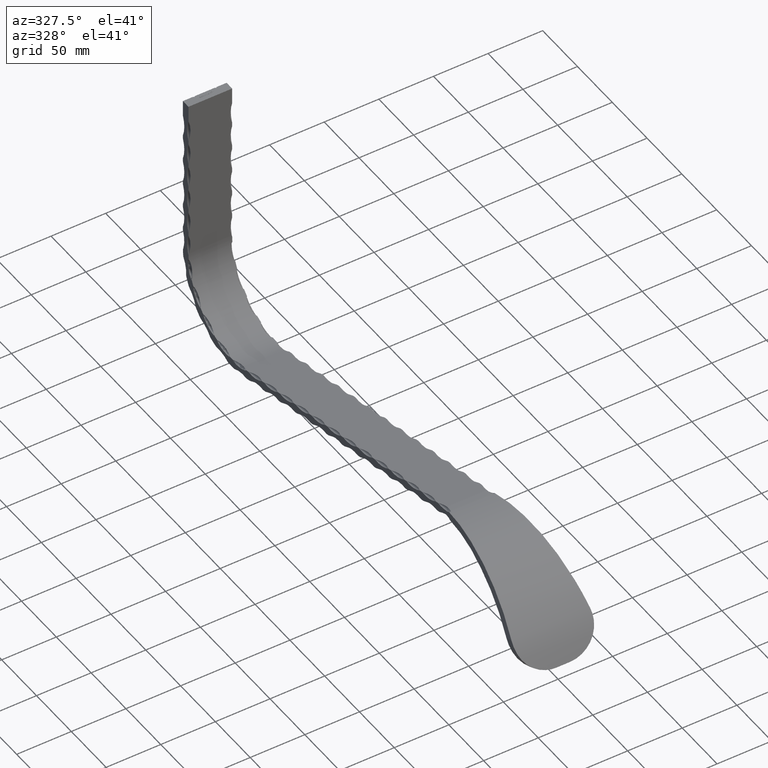
[diagram: clean part render]
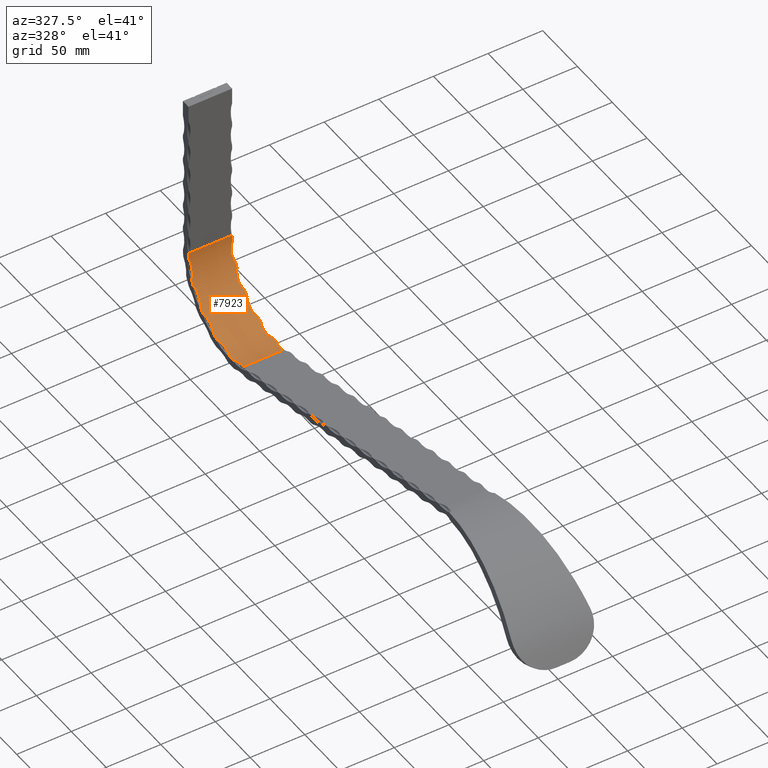
[diagram: same view with one face highlighted and labeled with its STEP entity id]
A machine part, auxiliary view. The second image highlights one B-rep face of the part: STEP entity #7923.
In plain terms, the highlighted cylindrical surface (partial cylindrical patch) has radius 62 mm, axis along (-1, -0, -0).
Its self-contained STEP definition (entity closure, byte-faithful):
#47 = EDGE_CURVE ( 'NONE', #12354, #15151, #887, .T. ) ;
#290 = CARTESIAN_POINT ( 'NONE',  ( -18.68719138520905800, 443.9795327301053500, -0.02651144538278313000 ) ) ;
#295 = CARTESIAN_POINT ( 'NONE',  ( -19.90369905396864100, 482.7277189689108900, 19.04787996444734000 ) ) ;
#326 = ORIENTED_EDGE ( 'NONE', *, *, #3262, .F. ) ;
#345 = CARTESIAN_POINT ( 'NONE',  ( -18.68822196674057400, 455.5403999222446600, 2.278690789800760900 ) ) ;
#348 = CARTESIAN_POINT ( 'NONE',  ( -19.14392234266850700, 492.0311785702201100, 31.80559754568271900 ) ) ;
#371 = CARTESIAN_POINT ( 'NONE',  ( -19.99999999999990400, 435.0342642097218700, -0.2853120057348864600 ) ) ;
#394 = CARTESIAN_POINT ( 'NONE',  ( -19.81828889607189500, 457.9577113853986800, 3.064065334530516400 ) ) ;
#396 = CARTESIAN_POINT ( 'NONE',  ( -19.02059602091225400, 491.8592994374851600, 31.49463779388168300 ) ) ;
#412 = CARTESIAN_POINT ( 'NONE',  ( -19.67491351403288000, 464.0578811206276600, 5.544159079433324400 ) ) ;
#441 = ORIENTED_EDGE ( 'NONE', *, *, #9652, .F. ) ;
#448 = CARTESIAN_POINT ( 'NONE',  ( -19.37595210348068900, 457.3904281489606100, 2.870690396749518800 ) ) ;
#451 = CARTESIAN_POINT ( 'NONE',  ( -18.15888756083449400, 486.3540036451472600, 23.23429518739130400 ) ) ;
#467 = CARTESIAN_POINT ( 'NONE',  ( -19.37310411158465600, 464.4894137903320400, 5.748744352338819800 ) ) ;
#482 = CIRCLE ( 'NONE', #13208, 62.00000000000011400 ) ;
#505 = CARTESIAN_POINT ( 'NONE',  ( -18.68719138520905100, 484.4755952763242700, 20.96849086712985900 ) ) ;
#520 = VERTEX_POINT ( 'NONE', #9267 ) ;
#522 = CARTESIAN_POINT ( 'NONE',  ( -19.61947812566619800, 477.9387518112250200, 14.49801283083825800 ) ) ;
#526 = CARTESIAN_POINT ( 'NONE',  ( 0.0000000000000000000, 437.6900000000000500, 61.65778339167199100 ) ) ;
#543 = CARTESIAN_POINT ( 'NONE',  ( 19.81639440749286900, 499.3304828277949800, 54.99033522892371900 ) ) ;
#558 = CARTESIAN_POINT ( 'NONE',  ( 18.52144386288863800, 454.8383064295905500, 2.071912342253757500 ) ) ;
#594 = CARTESIAN_POINT ( 'NONE',  ( -20.00000000000000000, 499.6662879293584200, 59.94321799563619600 ) ) ;
#626 = CARTESIAN_POINT ( 'NONE',  ( 19.86932737151768400, 435.0089629215372600, -0.2842327431798333800 ) ) ;
#646 = CARTESIAN_POINT ( 'NONE',  ( 19.37310411158475900, 499.2628214751790100, 54.39026102205657800 ) ) ;
#664 = CARTESIAN_POINT ( 'NONE',  ( 19.14392234266837900, 442.5503316042546700, -0.1523603137158767400 ) ) ;
#760 = CARTESIAN_POINT ( 'NONE',  ( -20.00000000000000000, 441.3907631213237400, -0.2316692825912042300 ) ) ;
#769 = CARTESIAN_POINT ( 'NONE',  ( 19.37310411158475900, 457.3849684282734500, 2.868860587997224400 ) ) ;
#773 = CARTESIAN_POINT ( 'NONE',  ( -19.94831422597528500, 499.6684042774157300, 60.02141192794508100 ) ) ;
#791 = CARTESIAN_POINT ( 'NONE',  ( 19.33637270488160500, 499.6900000000001700, 61.65778339167188400 ) ) ;
#815 = CARTESIAN_POINT ( 'NONE',  ( 17.99985822696416100, 471.9445983360947700, 9.974429819550493900 ) ) ;
#887 = LINE ( 'NONE', #4168, #13857 ) ;
#899 = CARTESIAN_POINT ( 'NONE',  ( 19.95631029757695200, 499.6679351534832000, 60.00374359044074200 ) ) ;
#911 = CARTESIAN_POINT ( 'NONE',  ( 20.00000000000000000, 492.5803894379131400, 32.82992971932495200 ) ) ;
#949 = CIRCLE ( 'NONE', #10217, 62.00000000000011400 ) ;
#974 = CARTESIAN_POINT ( 'NONE',  ( -19.95624225361313000, 499.6679391014228000, 60.00389163318405400 ) ) ;
#1014 = ORIENTED_EDGE ( 'NONE', *, *, #15213, .F. ) ;
#1020 = CARTESIAN_POINT ( 'NONE',  ( -19.99999999999990400, 435.0342642097218700, -0.2853120057348864600 ) ) ;
#1026 = EDGE_CURVE ( 'NONE', #6177, #8564, #6988, .T. ) ;
#1027 = CARTESIAN_POINT ( 'NONE',  ( -19.33637270488094400, 499.6900000000001700, 61.65778339167187700 ) ) ;
#1077 = CARTESIAN_POINT ( 'NONE',  ( -19.02059602091224000, 499.1566337753187700, 53.53489682147517200 ) ) ;
#1110 = B_SPLINE_CURVE_WITH_KNOTS ( 'NONE', 3,
 ( #15112, #5724, #14027, #4348, #11577, #1974, #7926, #4497, #10237, #12776, #7974, #3165, #11424, #12619, #815, #9107, #2034, #3211, #11475, #4401, #13874, #1142, #3564, #2443, #9352, #15370, #10699, #14077, #10542, #3620 ),
 .UNSPECIFIED., .F., .F.,
 ( 4, 2, 2, 2, 2, 2, 2, 2, 2, 2, 2, 2, 2, 2, 4 ),
 ( 1.968361847445625900E-007, 0.0002845478791630979100, 0.0005688989221414512800, 0.001137601008098260600, 0.002275005180011994100, 0.004549813523839459400, 0.006824621867666924800, 0.009099430211494390100, 0.01137423855532185500, 0.01364904689914932100, 0.01592385524297678900, 0.01706125941489045100, 0.01762996150084728000, 0.01791431254382569400, 0.01819866358680410900 ),
 .UNSPECIFIED. ) ;
#1142 = CARTESIAN_POINT ( 'NONE',  ( 19.02059602091212300, 465.2644056504058200, 6.125986131648991400 ) ) ;
#1161 = CARTESIAN_POINT ( 'NONE',  ( 19.61947812566615600, 495.3359552893570600, 38.83345819924810600 ) ) ;
#1183 = VERTEX_POINT ( 'NONE', #5930 ) ;
#1192 = DIRECTION ( 'NONE',  ( -1.000000000000000000, -0.0000000000000000000, -0.0000000000000000000 ) ) ;
#1203 = DIRECTION ( 'NONE',  ( 0.0000000000000000000, 0.0000000000000000000, 1.000000000000000000 ) ) ;
#1246 = CARTESIAN_POINT ( 'NONE',  ( -18.00014273571079900, 498.0337344575001500, 47.40365222380359000 ) ) ;
#1328 = CARTESIAN_POINT ( 'NONE',  ( 18.00014273571078100, 487.6941188592720100, 24.99534156442994600 ) ) ;
#1372 = CARTESIAN_POINT ( 'NONE',  ( 17.99985822696416100, 488.5541007365347400, 26.19809078313765100 ) ) ;
#1398 = VERTEX_POINT ( 'NONE', #371 ) ;
#1419 = EDGE_CURVE ( 'NONE', #1183, #9779, #6056, .T. ) ;
#1422 = CARTESIAN_POINT ( 'NONE',  ( 19.37310411158475900, 492.2726776492482400, 32.25097250634529900 ) ) ;
#1424 = AXIS2_PLACEMENT_3D ( 'NONE', #8124, #1192, #13083 ) ;
#1474 = CARTESIAN_POINT ( 'NONE',  ( 18.68719138520919300, 491.3286488397477000, 30.55463560637515000 ) ) ;
#1502 = CARTESIAN_POINT ( 'NONE',  ( -18.52144386288851800, 444.7026256442925400, 0.05126162900434505500 ) ) ;
#1530 = EDGE_CURVE ( 'NONE', #520, #4849, #6327, .T. ) ;
#1558 = CARTESIAN_POINT ( 'NONE',  ( -19.14392234266850300, 456.9041413888973600, 2.709217176101657900 ) ) ;
#1614 = CARTESIAN_POINT ( 'NONE',  ( -18.15919154060683000, 489.7934542530018100, 28.04565957195817600 ) ) ;
#1615 = AXIS2_PLACEMENT_3D ( 'NONE', #6296, #6241, #13447 ) ;
#1681 = CARTESIAN_POINT ( 'NONE',  ( -19.90369905396865500, 463.8965862696247200, 5.468684483674342900 ) ) ;
#1714 = CARTESIAN_POINT ( 'NONE',  ( -18.00014273571079600, 488.5598227586488600, 26.20629997938368700 ) ) ;
#1727 = VERTEX_POINT ( 'NONE', #2524 ) ;
#1731 = CARTESIAN_POINT ( 'NONE',  ( -19.81828889607191600, 478.0897288969942500, 14.62730576693406100 ) ) ;
#1740 = DIRECTION ( 'NONE',  ( 0.0000000000000000000, 0.0000000000000000000, 1.000000000000000000 ) ) ;
#1770 = CARTESIAN_POINT ( 'NONE',  ( 19.90487990038382900, 441.3907631213222100, -0.2316692825913043700 ) ) ;
#1785 = CARTESIAN_POINT ( 'NONE',  ( -18.52114597830945900, 475.5532262967483300, 12.55665935534264200 ) ) ;
#1841 = CARTESIAN_POINT ( 'NONE',  ( 18.23920007506646000, 423.1718806842908400, 1.381550832438140000 ) ) ;
#1856 = CARTESIAN_POINT ( 'NONE',  ( 19.01799810594225400, 499.1556115863784300, 53.52721113693982600 ) ) ;
#1874 = CARTESIAN_POINT ( 'NONE',  ( 18.03160873164034700, 448.3550333466049000, 0.5774929823898673500 ) ) ;
#1884 = B_SPLINE_CURVE_WITH_KNOTS ( 'NONE', 3,
 ( #9927, #295, #8603, #9780, #2712, #2862, #14650, #10963, #4046, #505, #3889, #7506, #451, #8810, #3990, #1714, #13351, #1614, #12299, #11121, #6252, #396, #348, #5220, #9876, #14556, #2807, #13513, #7456, #12203 ),
 .UNSPECIFIED., .F., .F.,
 ( 4, 2, 2, 2, 2, 2, 2, 2, 2, 2, 2, 2, 2, 2, 4 ),
 ( 1.968361847429767600E-007, 0.0002845478791631053900, 0.0005688989221414678700, 0.001137601008098292900, 0.002275005180012047500, 0.004549813523839672800, 0.006824621867667299500, 0.009099430211494924400, 0.01137423855532255200, 0.01364904689915017800, 0.01592385524297780500, 0.01706125941489157800, 0.01762996150084846600, 0.01791431254382686700, 0.01819866358680527100 ),
 .UNSPECIFIED. ) ;
#1924 = CARTESIAN_POINT ( 'NONE',  ( 19.01799810594226500, 456.5586603197866700, 2.597633793034315200 ) ) ;
#1974 = CARTESIAN_POINT ( 'NONE',  ( 19.45692185769785700, 477.7569870827563200, 14.34329297583547300 ) ) ;
#1975 = CARTESIAN_POINT ( 'NONE',  ( -18.01851609357287000, 425.1894334118264300, 0.9221135139120163500 ) ) ;
#1981 = CARTESIAN_POINT ( 'NONE',  ( 18.25502145826447600, 446.1675517535293800, 0.2356749656663107400 ) ) ;
#1984 = CARTESIAN_POINT ( 'NONE',  ( -20.00000000000000000, 437.6900000000000500, 61.65778339167199100 ) ) ;
#2001 = CARTESIAN_POINT ( 'NONE',  ( 19.32154447793690000, 434.2863259259376000, -0.2491399680398377900 ) ) ;
#2034 = CARTESIAN_POINT ( 'NONE',  ( 18.03160873164034300, 470.0749506047996000, 8.782838596512876400 ) ) ;
#2043 = CARTESIAN_POINT ( 'NONE',  ( -19.98415826360468000, 499.6665738833070200, 59.95356653165409000 ) ) ;
#2055 = CARTESIAN_POINT ( 'NONE',  ( -19.99999999999994300, 478.1280451573723000, 14.66028873663384100 ) ) ;
#2280 = CARTESIAN_POINT ( 'NONE',  ( -19.14392234266850000, 499.2020796826811300, 53.88727882018372400 ) ) ;
#2360 = CARTESIAN_POINT ( 'NONE',  ( 19.81828889607191300, 495.2624685475007000, 38.64876807357012500 ) ) ;
#2443 = CARTESIAN_POINT ( 'NONE',  ( 19.37595210348061800, 464.4842210093903000, 5.746256024357371000 ) ) ;
#2481 = CARTESIAN_POINT ( 'NONE',  ( 18.68822196674043900, 484.4725637820400300, 20.96496901879989500 ) ) ;
#2491 = CARTESIAN_POINT ( 'NONE',  ( -19.99999999999994300, 499.3359971906606900, 55.04181555853698200 ) ) ;
#2524 = CARTESIAN_POINT ( 'NONE',  ( 20.00000000000000000, 499.3359971906606900, 55.04181555853699600 ) ) ;
#2534 = CARTESIAN_POINT ( 'NONE',  ( 19.67696757368710400, 482.8483707015167300, 19.17572275255028200 ) ) ;
#2580 = DIRECTION ( 'NONE',  ( 0.0000000000000000000, 0.0000000000000000000, 1.000000000000000000 ) ) ;
#2583 = CARTESIAN_POINT ( 'NONE',  ( 18.52114597830932800, 484.9504609009044300, 21.52060458369092200 ) ) ;
#2659 = CARTESIAN_POINT ( 'NONE',  ( -19.67696757368711900, 457.8393214602559700, 3.023247789751642800 ) ) ;
#2686 = CARTESIAN_POINT ( 'NONE',  ( -20.00000000000000000, 437.6900000000000500, 61.65778339167199100 ) ) ;
#2703 = EDGE_CURVE ( 'NONE', #520, #14333, #4746, .T. ) ;
#2711 = CARTESIAN_POINT ( 'NONE',  ( -19.81639440749286900, 441.4424462593762000, -0.2285893839004035600 ) ) ;
#2712 = CARTESIAN_POINT ( 'NONE',  ( -19.61630457784930200, 482.9015604884309600, 19.23230858583196900 ) ) ;
#2761 = CARTESIAN_POINT ( 'NONE',  ( -19.01799810594213700, 442.9121903869805700, -0.1229283267849321900 ) ) ;
#2807 = CARTESIAN_POINT ( 'NONE',  ( -19.67696757368713600, 492.4984625956755100, 32.67440283556643300 ) ) ;
#2818 = VERTEX_POINT ( 'NONE', #11871 ) ;
#2819 = VERTEX_POINT ( 'NONE', #14114 ) ;
#2862 = CARTESIAN_POINT ( 'NONE',  ( -19.45692185769778200, 483.0618646756458900, 19.40357232277483800 ) ) ;
#3000 = CARTESIAN_POINT ( 'NONE',  ( 19.67491351403292300, 499.3167721458674500, 54.86477646336923900 ) ) ;
#3019 = EDGE_CURVE ( 'NONE', #14131, #11996, #4542, .T. ) ;
#3060 = ORIENTED_EDGE ( 'NONE', *, *, #11952, .F. ) ;
#3123 = CARTESIAN_POINT ( 'NONE',  ( 17.99985822696415700, 450.5319123372481700, 0.9978144570399123400 ) ) ;
#3127 = CARTESIAN_POINT ( 'NONE',  ( -19.33637270488094400, 499.6900000000001700, 61.65778339167187700 ) ) ;
#3146 = CARTESIAN_POINT ( 'NONE',  ( 19.97383523327071200, 499.6670114242884900, 59.96955355043007100 ) ) ;
#3165 = CARTESIAN_POINT ( 'NONE',  ( 18.25601629155377700, 474.3791042618744900, 11.67328508887481900 ) ) ;
#3171 = ORIENTED_EDGE ( 'NONE', *, *, #6577, .F. ) ;
#3172 = CARTESIAN_POINT ( 'NONE',  ( 19.02059602091212300, 442.9044650409271100, -0.1235868443334298800 ) ) ;
#3211 = CARTESIAN_POINT ( 'NONE',  ( 18.15919154060674500, 468.8069906073234300, 8.026843549914803000 ) ) ;
#3233 = VERTEX_POINT ( 'NONE', #15388 ) ;
#3262 = EDGE_CURVE ( 'NONE', #4849, #1727, #9712, .T. ) ;
#3291 = VERTEX_POINT ( 'NONE', #13396 ) ;
#3306 = EDGE_CURVE ( 'NONE', #7314, #8362, #13077, .T. ) ;
#3408 = CARTESIAN_POINT ( 'NONE',  ( -19.01799810594212700, 495.7943741012262500, 40.02426025784744500 ) ) ;
#3462 = CARTESIAN_POINT ( 'NONE',  ( -19.37595210348068500, 499.2634957405789500, 54.39597959847228000 ) ) ;
#3463 = CARTESIAN_POINT ( 'NONE',  ( -19.87033670662543000, 435.0093519409404100, -0.2842492546155290800 ) ) ;
#3485 = CARTESIAN_POINT ( 'NONE',  ( 19.37595210348060300, 495.4823869729413000, 39.20629836248458100 ) ) ;
#3519 = CARTESIAN_POINT ( 'NONE',  ( -18.15919154060682700, 498.5042898818443900, 49.56783058227500800 ) ) ;
#3537 = EDGE_CURVE ( 'NONE', #15151, #1398, #12106, .T. ) ;
#3564 = CARTESIAN_POINT ( 'NONE',  ( 19.14392234266840700, 464.9456845001389000, 5.968966286144319800 ) ) ;
#3588 = CARTESIAN_POINT ( 'NONE',  ( 19.46073674653607500, 495.4211022486071600, 39.04929472017756400 ) ) ;
#3606 = CARTESIAN_POINT ( 'NONE',  ( -20.00000000000000000, 437.6900000000000500, 61.65778339167199100 ) ) ;
#3620 = CARTESIAN_POINT ( 'NONE',  ( 19.99999999999994700, 463.8965862696246100, 5.468684483674348200 ) ) ;
#3636 = AXIS2_PLACEMENT_3D ( 'NONE', #2686, #3909, #3960 ) ;
#3685 = ORIENTED_EDGE ( 'NONE', *, *, #11926, .F. ) ;
#3713 = CARTESIAN_POINT ( 'NONE',  ( 19.90487990038383300, 482.7277189689100400, 19.04787996444617100 ) ) ;
#3752 = CARTESIAN_POINT ( 'NONE',  ( 19.81639440749286500, 492.5563252730344200, 32.78408706992951900 ) ) ;
#3829 = DIRECTION ( 'NONE',  ( -1.000000000000000000, -0.0000000000000000000, -0.0000000000000000000 ) ) ;
#3854 = CARTESIAN_POINT ( 'NONE',  ( 18.52144386288865300, 490.9603565499801900, 29.92752094146504400 ) ) ;
#3889 = CARTESIAN_POINT ( 'NONE',  ( -18.52144386288852100, 484.9498081007539600, 21.51988384023869500 ) ) ;
#3909 = DIRECTION ( 'NONE',  ( -1.000000000000000000, -0.0000000000000000000, -0.0000000000000000000 ) ) ;
#3957 = B_SPLINE_CURVE_WITH_KNOTS ( 'NONE', 3,
 ( #12630, #4506, #2043, #13987, #12786, #974, #773, #12736, #7984, #5642, #10194, #15122, #12575, #5485, #15019, #3127 ),
 .UNSPECIFIED., .F., .F.,
 ( 4, 2, 2, 2, 2, 2, 2, 4 ),
 ( 1.971371264760840900E-007, 2.927271934299039000E-005, 5.834830155950470100E-005, 0.0001164994659925333100, 0.0002328017948586097700, 0.0004654064525907626300, 0.0009306157680550910800, 0.001861034398983728100 ),
 .UNSPECIFIED. ) ;
#3960 = DIRECTION ( 'NONE',  ( 0.0000000000000000000, 0.0000000000000000000, 1.000000000000000000 ) ) ;
#3987 = CARTESIAN_POINT ( 'NONE',  ( -18.25502145826458300, 453.4146559147805000, 1.680458646469092300 ) ) ;
#3990 = CARTESIAN_POINT ( 'NONE',  ( -17.99985822696414000, 487.7000349990144600, 25.00341198762995600 ) ) ;
#4046 = CARTESIAN_POINT ( 'NONE',  ( -19.01799810594212700, 483.7630443295157100, 20.16799911786026600 ) ) ;
#4063 = CARTESIAN_POINT ( 'NONE',  ( -19.81639440749285100, 463.9435129966418600, 5.490559465419595500 ) ) ;
#4067 = DIRECTION ( 'NONE',  ( -1.000000000000000000, 0.0000000000000000000, 0.0000000000000000000 ) ) ;
#4113 = CARTESIAN_POINT ( 'NONE',  ( -17.99985822696413300, 470.7109631029671800, 9.177667734591171500 ) ) ;
#4165 = CARTESIAN_POINT ( 'NONE',  ( 20.00000000000000000, 435.0342642097218700, -0.2853120057348806900 ) ) ;
#4168 = CARTESIAN_POINT ( 'NONE',  ( 20.00000000000000000, 423.1718806842908400, 1.381550832438196900 ) ) ;
#4182 = CARTESIAN_POINT ( 'NONE',  ( 19.45692185769785400, 499.2822069059872100, 54.55676194049390700 ) ) ;
#4274 = CARTESIAN_POINT ( 'NONE',  ( 18.44255843233208500, 431.3039362760505900, -0.01458517876724504400 ) ) ;
#4278 = CARTESIAN_POINT ( 'NONE',  ( 19.94838846342634800, 499.6683999553207500, 60.02124823987443800 ) ) ;
#4301 = CARTESIAN_POINT ( 'NONE',  ( 18.15919154060673800, 446.8978864947837300, 0.3409044832864457900 ) ) ;
#4348 = CARTESIAN_POINT ( 'NONE',  ( 19.67491351403292300, 477.9929105956314300, 14.54430988602642400 ) ) ;
#4354 = CARTESIAN_POINT ( 'NONE',  ( 19.99999999999994300, 441.3907631213237400, -0.2316692825912051700 ) ) ;
#4401 = CARTESIAN_POINT ( 'NONE',  ( 18.52114597830933500, 466.8730533743000700, 6.950437605365310700 ) ) ;
#4478 = CARTESIAN_POINT ( 'NONE',  ( 20.00000000000002100, 499.6662879293584800, 59.94321799563618900 ) ) ;
#4497 = CARTESIAN_POINT ( 'NONE',  ( 19.14159486558975200, 477.2357542768105500, 13.90581775771580600 ) ) ;
#4506 = CARTESIAN_POINT ( 'NONE',  ( -19.99018256397586100, 499.6662879293585300, 59.94321799563620300 ) ) ;
#4542 = B_SPLINE_CURVE_WITH_KNOTS ( 'NONE', 3,
 ( #14621, #1681, #4063, #412, #14667, #8721, #467, #9891, #9998, #5187, #8768, #13574, #6524, #9947, #4113, #11137, #12317, #13525, #6426, #1785, #8922, #11190, #12425, #14772, #14724, #522, #8828, #1731, #12372, #2055 ),
 .UNSPECIFIED., .F., .F.,
 ( 4, 2, 2, 2, 2, 2, 2, 2, 2, 2, 2, 2, 2, 2, 4 ),
 ( 1.968361847449567800E-007, 0.0002845478791631387900, 0.0005688989221415325900, 0.001137601008098320200, 0.002275005180012038800, 0.004549813523839615600, 0.006824621867667191900, 0.009099430211494768200, 0.01137423855532234500, 0.01364904689914991900, 0.01592385524297749300, 0.01706125941489134600, 0.01762996150084821300, 0.01791431254382664900, 0.01819866358680508400 ),
 .UNSPECIFIED. ) ;
#4550 = CARTESIAN_POINT ( 'NONE',  ( -19.58463138201677400, 434.7453699292201500, -0.2723279678675683000 ) ) ;
#4562 = VECTOR ( 'NONE', #5617, 1000.000000000000000 ) ;
#4602 = CARTESIAN_POINT ( 'NONE',  ( -18.68822196674056400, 499.0096678743296900, 52.47019679955946000 ) ) ;
#4604 = CARTESIAN_POINT ( 'NONE',  ( -18.94597589702860700, 433.3209177671284900, -0.1900082743451723400 ) ) ;
#4654 = CARTESIAN_POINT ( 'NONE',  ( -19.61947812566619100, 499.3089409343368200, 54.79395793914402900 ) ) ;
#4655 = CARTESIAN_POINT ( 'NONE',  ( -19.71320070707240300, 434.8917190759002600, -0.2790554740992136100 ) ) ;
#4726 = CARTESIAN_POINT ( 'NONE',  ( -20.00000000000000000, 495.2436576922355000, 38.60184085520203500 ) ) ;
#4746 = LINE ( 'NONE', #13963, #4562 ) ;
#4842 = CARTESIAN_POINT ( 'NONE',  ( 19.46073674653607500, 483.0573133498917300, 19.39869198803477300 ) ) ;
#4849 = VERTEX_POINT ( 'NONE', #10829 ) ;
#4937 = CARTESIAN_POINT ( 'NONE',  ( 18.03160873164034700, 487.2538464779543700, 24.40231486588081100 ) ) ;
#4962 = CARTESIAN_POINT ( 'NONE',  ( -20.00000000000000000, 441.3907631213237400, -0.2316692825912042300 ) ) ;
#5014 = CARTESIAN_POINT ( 'NONE',  ( -19.61630457784930600, 441.6437286450150700, -0.2160733177784472900 ) ) ;
#5118 = CARTESIAN_POINT ( 'NONE',  ( 20.00000000000000000, 437.6900000000000500, 61.65778339167199100 ) ) ;
#5174 = EDGE_CURVE ( 'NONE', #7314, #1398, #6923, .T. ) ;
#5187 = CARTESIAN_POINT ( 'NONE',  ( -18.68719138520906100, 466.2283922769018400, 6.611706167609522600 ) ) ;
#5204 = CARTESIAN_POINT ( 'NONE',  ( -19.99999999999994300, 478.1280451573723000, 14.66028873663384100 ) ) ;
#5220 = CARTESIAN_POINT ( 'NONE',  ( -19.37595210348069200, 492.2754081507771400, 32.25604213270756300 ) ) ;
#5299 = ORIENTED_EDGE ( 'NONE', *, *, #8357, .F. ) ;
#5331 = VERTEX_POINT ( 'NONE', #12094 ) ;
#5341 = CARTESIAN_POINT ( 'NONE',  ( 19.71114667279109500, 434.8897043075757600, -0.2789649983172497500 ) ) ;
#5368 = CIRCLE ( 'NONE', #1615, 62.00000000000011400 ) ;
#5444 = CARTESIAN_POINT ( 'NONE',  ( 18.94299688040700500, 433.3117356371239500, -0.1893736344050040700 ) ) ;
#5480 = CARTESIAN_POINT ( 'NONE',  ( 19.37595210348059300, 442.0393000783718100, -0.1897126035119271700 ) ) ;
#5485 = CARTESIAN_POINT ( 'NONE',  ( -19.53602496574197300, 499.6879427739728500, 61.07647026343795500 ) ) ;
#5500 = ORIENTED_EDGE ( 'NONE', *, *, #47, .F. ) ;
#5503 = CARTESIAN_POINT ( 'NONE',  ( 18.79878731680096500, 432.8137067064858500, -0.1522116063787079800 ) ) ;
#5533 = CARTESIAN_POINT ( 'NONE',  ( -17.98731056242003800, 427.2374155926059400, 0.5363531095532075900 ) ) ;
#5580 = ORIENTED_EDGE ( 'NONE', *, *, #11903, .F. ) ;
#5617 = DIRECTION ( 'NONE',  ( -1.000000000000000000, 0.0000000000000000000, 0.0000000000000000000 ) ) ;
#5632 = CARTESIAN_POINT ( 'NONE',  ( -18.03373092338916500, 428.2582220481886600, 0.3707857511742435100 ) ) ;
#5642 = CARTESIAN_POINT ( 'NONE',  ( -19.86597698567867800, 499.6732722597969300, 60.21591074508960200 ) ) ;
#5680 = CARTESIAN_POINT ( 'NONE',  ( -18.09576145840902200, 424.1754882558215100, 1.139822146835328000 ) ) ;
#5724 = CARTESIAN_POINT ( 'NONE',  ( 19.90369905396865500, 478.1280451573724100, 14.66028873663384700 ) ) ;
#5772 = CARTESIAN_POINT ( 'NONE',  ( -18.15888756083449000, 497.0757813290105700, 43.82863107019745300 ) ) ;
#5793 = CARTESIAN_POINT ( 'NONE',  ( 19.02059602091212300, 495.7916739294523700, 40.01699226710732700 ) ) ;
#5821 = CARTESIAN_POINT ( 'NONE',  ( -19.67696757368712600, 499.3170229200666800, 54.86705687890678000 ) ) ;
#5880 = CARTESIAN_POINT ( 'NONE',  ( -18.68719138520905800, 496.1625168890545300, 41.03073270169105800 ) ) ;
#5907 = CARTESIAN_POINT ( 'NONE',  ( 18.68822196674043600, 496.1609934021578900, 41.02634267197236500 ) ) ;
#5930 = CARTESIAN_POINT ( 'NONE',  ( 19.99999999999994700, 463.8965862696246100, 5.468684483674348200 ) ) ;
#5932 = CARTESIAN_POINT ( 'NONE',  ( -19.37310411158467400, 495.4844722797958000, 39.21166569379302300 ) ) ;
#5937 = FACE_OUTER_BOUND ( 'NONE', #15147, .T. ) ;
#5952 = CARTESIAN_POINT ( 'NONE',  ( 18.52114597830932000, 496.4010013299857700, 41.71881125015517000 ) ) ;
#5975 = CARTESIAN_POINT ( 'NONE',  ( 18.25502145826448000, 485.8921547648604900, 22.65654542088172700 ) ) ;
#6056 = CIRCLE ( 'NONE', #12325, 62.00000000000011400 ) ;
#6125 = CARTESIAN_POINT ( 'NONE',  ( 19.02059602091213400, 483.7578600247717300, 20.16223391176431800 ) ) ;
#6170 = CARTESIAN_POINT ( 'NONE',  ( 19.90369905396863700, 492.5803894379130800, 32.82992971932497300 ) ) ;
#6177 = VERTEX_POINT ( 'NONE', #594 ) ;
#6199 = CARTESIAN_POINT ( 'NONE',  ( -18.03103481941468500, 448.3633009777843200, 0.5788971641299545100 ) ) ;
#6241 = DIRECTION ( 'NONE',  ( -1.000000000000000000, -0.0000000000000000000, -0.0000000000000000000 ) ) ;
#6249 = CARTESIAN_POINT ( 'NONE',  ( -19.67491351403288700, 441.5685119951535300, -0.2208165678460412300 ) ) ;
#6252 = CARTESIAN_POINT ( 'NONE',  ( -18.68822196674057400, 491.3310003459099000, 30.55864357244579600 ) ) ;
#6296 = CARTESIAN_POINT ( 'NONE',  ( 20.00000000000000000, 437.6900000000000500, 61.65778339167199100 ) ) ;
#6301 = CARTESIAN_POINT ( 'NONE',  ( -19.45692185769778200, 441.8778141016027800, -0.2008188415699516400 ) ) ;
#6327 = B_SPLINE_CURVE_WITH_KNOTS ( 'NONE', 3,
 ( #791, #6749, #10328, #14880, #13748, #10374, #11557, #12592, #9033, #4278, #899, #7957, #3146, #13797, #6593, #4478 ),
 .UNSPECIFIED., .F., .F.,
 ( 4, 2, 2, 2, 2, 2, 2, 4 ),
 ( 2.107910642480517100E-007, 0.0009220416514771382600, 0.001382957081683592400, 0.001613414796786827400, 0.001728643654338433000, 0.001786258083114236000, 0.001815065297502130400, 0.001843872511890024800 ),
 .UNSPECIFIED. ) ;
#6351 = CARTESIAN_POINT ( 'NONE',  ( -19.46073674653613800, 457.5501478260069300, 2.924501045310960600 ) ) ;
#6360 = VERTEX_POINT ( 'NONE', #911 ) ;
#6426 = CARTESIAN_POINT ( 'NONE',  ( -18.25502145826459400, 474.3741302225805600, 11.66959601662779300 ) ) ;
#6524 = CARTESIAN_POINT ( 'NONE',  ( -18.15888756083450100, 468.8085539436543200, 8.027705105179835600 ) ) ;
#6566 = CARTESIAN_POINT ( 'NONE',  ( 19.81639440749287900, 457.9565606597800000, 3.063666730781226600 ) ) ;
#6577 = EDGE_CURVE ( 'NONE', #6360, #2818, #11264, .T. ) ;
#6593 = CARTESIAN_POINT ( 'NONE',  ( 19.99030595753429300, 499.6662879293391500, 59.94321799492850300 ) ) ;
#6595 = ORIENTED_EDGE ( 'NONE', *, *, #3306, .F. ) ;
#6604 = CARTESIAN_POINT ( 'NONE',  ( 18.52144386288864200, 498.8971607338692700, 51.74698539053545700 ) ) ;
#6623 = CARTESIAN_POINT ( 'NONE',  ( 19.46073674653606700, 441.8711557827275600, -0.2012649615703310500 ) ) ;
#6625 = CARTESIAN_POINT ( 'NONE',  ( -20.00000000000000000, 463.8965862696246100, 5.468684483674351800 ) ) ;
#6672 = CARTESIAN_POINT ( 'NONE',  ( 19.67696757368710400, 441.5662222889852700, -0.2209594957523666200 ) ) ;
#6674 = EDGE_CURVE ( 'NONE', #3291, #12354, #12690, .T. ) ;
#6691 = CARTESIAN_POINT ( 'NONE',  ( 18.09556197706712800, 424.1768839816683700, 1.139485972633241800 ) ) ;
#6705 = B_SPLINE_CURVE_WITH_KNOTS ( 'NONE', 3,
 ( #13721, #13672, #6566, #14856, #7773, #11378, #769, #11328, #1924, #8863, #558, #12571, #11427, #10190, #3123, #11227, #1874, #4301, #1981, #14911, #13612, #3172, #664, #5480, #6623, #13828, #6672, #13774, #1770, #4354 ),
 .UNSPECIFIED., .F., .F.,
 ( 4, 2, 2, 2, 2, 2, 2, 2, 2, 2, 2, 2, 2, 2, 4 ),
 ( 1.968361847476026700E-007, 0.0002845478791631853000, 0.0005688989221416230200, 0.001137601008098498200, 0.002275005180012249100, 0.004549813523839750000, 0.006824621867667250900, 0.009099430211494752600, 0.01137423855532225500, 0.01364904689914975400, 0.01592385524297725700, 0.01706125941489092600, 0.01762996150084768200, 0.01791431254382606600, 0.01819866358680444200 ),
 .UNSPECIFIED. ) ;
#6749 = CARTESIAN_POINT ( 'NONE',  ( 19.43363895005693500, 499.6900000000002800, 61.36623734193936000 ) ) ;
#6785 = AXIS2_PLACEMENT_3D ( 'NONE', #9051, #10180, #14954 ) ;
#6887 = EDGE_CURVE ( 'NONE', #3233, #11996, #949, .T. ) ;
#6923 = CIRCLE ( 'NONE', #13695, 62.00000000000011400 ) ;
#6937 = CARTESIAN_POINT ( 'NONE',  ( 20.00000000000000000, 437.6900000000000500, 61.65778339167199100 ) ) ;
#6988 = CIRCLE ( 'NONE', #6785, 62.00000000000011400 ) ;
#7006 = CARTESIAN_POINT ( 'NONE',  ( 18.15919154060674500, 497.0752304339242800, 43.82693318546591100 ) ) ;
#7085 = CARTESIAN_POINT ( 'NONE',  ( -17.99985822696413600, 497.6766942108973200, 45.96883628626032700 ) ) ;
#7136 = CARTESIAN_POINT ( 'NONE',  ( -18.03160873164039300, 498.1992311499982400, 48.12346558830539300 ) ) ;
#7137 = CARTESIAN_POINT ( 'NONE',  ( -18.80045709848067800, 432.8199117432283200, -0.1527204946314924800 ) ) ;
#7178 = CARTESIAN_POINT ( 'NONE',  ( 19.14159486558974500, 492.0281801114055600, 31.80013637438574400 ) ) ;
#7314 = VERTEX_POINT ( 'NONE', #760 ) ;
#7379 = CARTESIAN_POINT ( 'NONE',  ( 19.67491351403291600, 492.4973905800969200, 32.67237454433431800 ) ) ;
#7454 = CARTESIAN_POINT ( 'NONE',  ( -19.37310411158468100, 442.0450440943930600, -0.1893088337754864100 ) ) ;
#7456 = CARTESIAN_POINT ( 'NONE',  ( -19.90487990038382500, 492.5803894379141100, 32.82992971932640800 ) ) ;
#7504 = CARTESIAN_POINT ( 'NONE',  ( -18.52114597830946300, 454.8373809780584300, 2.071613747843591600 ) ) ;
#7506 = CARTESIAN_POINT ( 'NONE',  ( -18.25601629155368500, 485.8882351736805300, 22.65175093176121000 ) ) ;
#7585 = CARTESIAN_POINT ( 'NONE',  ( 20.00000000000000000, 437.6900000000000500, 61.65778339167199100 ) ) ;
#7653 = ORIENTED_EDGE ( 'NONE', *, *, #10067, .F. ) ;
#7689 = CARTESIAN_POINT ( 'NONE',  ( 19.51134362662893900, 434.6284451094965100, -0.2666860926874503000 ) ) ;
#7696 = DIRECTION ( 'NONE',  ( -1.000000000000000000, -0.0000000000000000000, -0.0000000000000000000 ) ) ;
#7699 = CARTESIAN_POINT ( 'NONE',  ( 18.23920007506646000, 423.1718806842908400, 1.381550832438140000 ) ) ;
#7773 = CARTESIAN_POINT ( 'NONE',  ( 19.61630457784932700, 457.7658667526166600, 2.998038349341613600 ) ) ;
#7808 = CARTESIAN_POINT ( 'NONE',  ( 18.15888756083457900, 498.5039805150231000, 49.56607257484395700 ) ) ;
#7843 = CARTESIAN_POINT ( 'NONE',  ( 18.01905967464143600, 425.1866422179230100, 0.9228526007446786700 ) ) ;
#7895 = DIRECTION ( 'NONE',  ( -1.000000000000000000, -0.0000000000000000000, -0.0000000000000000000 ) ) ;
#7923 = ADVANCED_FACE ( 'NONE', ( #5937 ), #12808, .F. ) ;
#7926 = CARTESIAN_POINT ( 'NONE',  ( 19.37310411158476600, 477.6289446768438400, 14.23511029211828200 ) ) ;
#7957 = CARTESIAN_POINT ( 'NONE',  ( 19.96933566579885500, 499.6672424251110600, 59.97805282775025400 ) ) ;
#7974 = CARTESIAN_POINT ( 'NONE',  ( 18.52144386288864900, 475.5539770304931700, 12.55727743139370000 ) ) ;
#7984 = CARTESIAN_POINT ( 'NONE',  ( -19.91010485737113500, 499.6706747154133300, 60.10948722736363000 ) ) ;
#8043 = DIRECTION ( 'NONE',  ( 0.0000000000000000000, 0.0000000000000000000, 1.000000000000000000 ) ) ;
#8056 = VERTEX_POINT ( 'NONE', #4726 ) ;
#8124 = CARTESIAN_POINT ( 'NONE',  ( 20.00000000000000000, 437.6900000000000500, 61.65778339167199100 ) ) ;
#8126 = CARTESIAN_POINT ( 'NONE',  ( -19.22308376461093400, 434.0515881516365100, -0.2358472386429673600 ) ) ;
#8132 = ORIENTED_EDGE ( 'NONE', *, *, #1419, .F. ) ;
#8177 = CARTESIAN_POINT ( 'NONE',  ( -18.52144386288851800, 496.4006594144196900, 41.71790091345587800 ) ) ;
#8178 = CARTESIAN_POINT ( 'NONE',  ( -19.32447896716493200, 434.2927821866086900, -0.2494928917573320200 ) ) ;
#8203 = CARTESIAN_POINT ( 'NONE',  ( 17.99985822696415400, 498.0314332598590000, 47.39391379839207000 ) ) ;
#8260 = CARTESIAN_POINT ( 'NONE',  ( 19.90487990038383300, 495.2436576922347600, 38.60184085520053500 ) ) ;
#8357 = EDGE_CURVE ( 'NONE', #9779, #2819, #6705, .T. ) ;
#8362 = VERTEX_POINT ( 'NONE', #10244 ) ;
#8431 = DIRECTION ( 'NONE',  ( -1.000000000000000000, -0.0000000000000000000, -0.0000000000000000000 ) ) ;
#8552 = CARTESIAN_POINT ( 'NONE',  ( -18.00014273571080300, 450.5417018167478900, 0.9998877469870103300 ) ) ;
#8564 = VERTEX_POINT ( 'NONE', #8593 ) ;
#8587 = CIRCLE ( 'NONE', #3636, 62.00000000000011400 ) ;
#8590 = EDGE_CURVE ( 'NONE', #2819, #3291, #5368, .T. ) ;
#8593 = CARTESIAN_POINT ( 'NONE',  ( -19.99999999999994300, 499.3359971906606900, 55.04181555853698200 ) ) ;
#8603 = CARTESIAN_POINT ( 'NONE',  ( -19.81639440749285100, 482.7633092139979000, 19.08548271686745300 ) ) ;
#8701 = CARTESIAN_POINT ( 'NONE',  ( -18.15888756083449000, 446.8996571381625200, 0.3411305805727192800 ) ) ;
#8721 = CARTESIAN_POINT ( 'NONE',  ( -19.45692185769779300, 464.3381421183009900, 5.676527789078912500 ) ) ;
#8768 = CARTESIAN_POINT ( 'NONE',  ( -18.52144386288852800, 466.8721812252750300, 6.950007517887417700 ) ) ;
#8810 = CARTESIAN_POINT ( 'NONE',  ( -18.03103481941468200, 487.2589162134049200, 24.40899492831603000 ) ) ;
#8828 = CARTESIAN_POINT ( 'NONE',  ( -19.67696757368714000, 477.9946535344450900, 14.54580164573035200 ) ) ;
#8857 = VERTEX_POINT ( 'NONE', #10638 ) ;
#8863 = CARTESIAN_POINT ( 'NONE',  ( 18.68719138520920400, 455.5359429163256100, 2.277376076337545500 ) ) ;
#8880 = DIRECTION ( 'NONE',  ( 0.0000000000000000000, 0.0000000000000000000, 1.000000000000000000 ) ) ;
#8888 = B_SPLINE_CURVE_WITH_KNOTS ( 'NONE', 3,
 ( #9301, #12981, #10492, #10645, #15316, #13030, #5932, #14240, #3408, #5880, #8177, #12927, #5772, #10592, #7085, #1246, #7136, #3519, #11676, #9502, #4602, #1077, #2280, #3462, #11724, #4654, #5821, #14129, #11780, #2491 ),
 .UNSPECIFIED., .F., .F.,
 ( 4, 2, 2, 2, 2, 2, 2, 2, 2, 2, 2, 2, 2, 2, 4 ),
 ( 1.968361847433919100E-007, 0.0002845478791631780900, 0.0005688989221416127200, 0.001137601008098453400, 0.002275005180012130300, 0.004549813523839539200, 0.006824621867666949000, 0.009099430211494358800, 0.01137423855532176800, 0.01364904689914917700, 0.01592385524297658400, 0.01706125941489028800, 0.01762996150084713100, 0.01791431254382554200, 0.01819866358680395000 ),
 .UNSPECIFIED. ) ;
#8894 = CARTESIAN_POINT ( 'NONE',  ( 20.00000000000000000, 499.3359971906606900, 55.04181555853699600 ) ) ;
#8922 = CARTESIAN_POINT ( 'NONE',  ( -18.68822196674057400, 476.1307857674961500, 13.00781519863879000 ) ) ;
#8928 = CARTESIAN_POINT ( 'NONE',  ( 18.03193712528148800, 428.2348201847573800, 0.3742797459370721900 ) ) ;
#8944 = CARTESIAN_POINT ( 'NONE',  ( 19.14159486558975200, 499.2013002715469800, 53.88109758523589900 ) ) ;
#9033 = CARTESIAN_POINT ( 'NONE',  ( 19.92502473309706400, 499.6697755033586100, 60.07390781187838500 ) ) ;
#9051 = CARTESIAN_POINT ( 'NONE',  ( -20.00000000000000000, 437.6900000000000500, 61.65778339167199100 ) ) ;
#9107 = CARTESIAN_POINT ( 'NONE',  ( 18.00014273571077800, 470.7024931369089700, 9.172339309396786400 ) ) ;
#9135 = ORIENTED_EDGE ( 'NONE', *, *, #14529, .T. ) ;
#9136 = ORIENTED_EDGE ( 'NONE', *, *, #1026, .T. ) ;
#9267 = CARTESIAN_POINT ( 'NONE',  ( 19.33637270488160500, 499.6900000000001700, 61.65778339167188400 ) ) ;
#9301 = CARTESIAN_POINT ( 'NONE',  ( -20.00000000000000000, 495.2436576922355000, 38.60184085520203500 ) ) ;
#9302 = CARTESIAN_POINT ( 'NONE',  ( -19.51487793229769400, 434.6342091520192500, -0.2669703722270309100 ) ) ;
#9352 = CARTESIAN_POINT ( 'NONE',  ( 19.46073674653608200, 464.3321147143600500, 5.673663764807326300 ) ) ;
#9431 = CARTESIAN_POINT ( 'NONE',  ( 19.99999999999994300, 495.2436576922355000, 38.60184085520204200 ) ) ;
#9477 = CARTESIAN_POINT ( 'NONE',  ( 18.03103481941472800, 498.1974385473048400, 48.11527339523748700 ) ) ;
#9502 = CARTESIAN_POINT ( 'NONE',  ( -18.52114597830944800, 498.8970359799735700, 51.74602099661898100 ) ) ;
#9547 = CARTESIAN_POINT ( 'NONE',  ( 18.03103481941472800, 488.9738107547520400, 26.80781278866888700 ) ) ;
#9597 = CARTESIAN_POINT ( 'NONE',  ( 18.15919154060675600, 486.3528668270590700, 23.23291898152285000 ) ) ;
#9652 = EDGE_CURVE ( 'NONE', #6177, #14333, #3957, .T. ) ;
#9658 = CIRCLE ( 'NONE', #11554, 62.00000000000011400 ) ;
#9712 = CIRCLE ( 'NONE', #11835, 62.00000000000011400 ) ;
#9779 = VERTEX_POINT ( 'NONE', #11787 ) ;
#9780 = CARTESIAN_POINT ( 'NONE',  ( -19.67491351403288000, 482.8499430150939100, 19.17739338498666200 ) ) ;
#9824 = CARTESIAN_POINT ( 'NONE',  ( -18.15919154060683400, 452.6998022696669800, 1.497575208921025500 ) ) ;
#9872 = CARTESIAN_POINT ( 'NONE',  ( -19.90369905396865100, 441.3907631213237400, -0.2316692825912090000 ) ) ;
#9876 = CARTESIAN_POINT ( 'NONE',  ( -19.46073674653614900, 492.3550944567967300, 32.40455493945290000 ) ) ;
#9891 = CARTESIAN_POINT ( 'NONE',  ( -19.14159486558962800, 464.9512810297169900, 5.971703803976009100 ) ) ;
#9923 = CARTESIAN_POINT ( 'NONE',  ( -19.61947812566618100, 457.7697604745434900, 2.999372221601737100 ) ) ;
#9927 = CARTESIAN_POINT ( 'NONE',  ( -20.00000000000000000, 482.7277189689110600, 19.04787996444734000 ) ) ;
#9947 = CARTESIAN_POINT ( 'NONE',  ( -18.03103481941468200, 470.0821220806890900, 8.787185478757020700 ) ) ;
#9998 = CARTESIAN_POINT ( 'NONE',  ( -19.01799810594214400, 465.2713471443307200, 6.129440155259093400 ) ) ;
#10063 = CARTESIAN_POINT ( 'NONE',  ( 19.90369905396865100, 499.3359971906608100, 55.04181555853699600 ) ) ;
#10067 = EDGE_CURVE ( 'NONE', #3233, #10175, #1884, .T. ) ;
#10175 = VERTEX_POINT ( 'NONE', #14909 ) ;
#10180 = DIRECTION ( 'NONE',  ( -1.000000000000000000, -0.0000000000000000000, -0.0000000000000000000 ) ) ;
#10190 = CARTESIAN_POINT ( 'NONE',  ( 18.03103481941473200, 451.2551541586337300, 1.155417411390686800 ) ) ;
#10194 = CARTESIAN_POINT ( 'NONE',  ( -19.83733292270444800, 499.6748899243044700, 60.28719167334998700 ) ) ;
#10217 = AXIS2_PLACEMENT_3D ( 'NONE', #1984, #10247, #12680 ) ;
#10237 = CARTESIAN_POINT ( 'NONE',  ( 19.01799810594226200, 476.9603365598736700, 13.67895181616151300 ) ) ;
#10244 = CARTESIAN_POINT ( 'NONE',  ( -19.99999999999994700, 458.0054736756313200, 3.080641695147176200 ) ) ;
#10247 = DIRECTION ( 'NONE',  ( -1.000000000000000000, -0.0000000000000000000, -0.0000000000000000000 ) ) ;
#10263 = CARTESIAN_POINT ( 'NONE',  ( 18.26659128162509300, 430.2849101775441300, 0.09945739351147499200 ) ) ;
#10308 = CIRCLE ( 'NONE', #1424, 62.00000000000011400 ) ;
#10328 = CARTESIAN_POINT ( 'NONE',  ( 19.53600620319893000, 499.6879435372908300, 61.07651991926582700 ) ) ;
#10351 = CARTESIAN_POINT ( 'NONE',  ( -18.23920007506646000, 423.1718806842908400, 1.381550832438196900 ) ) ;
#10374 = CARTESIAN_POINT ( 'NONE',  ( 19.83738982061487400, 499.6748867967993400, 60.28704954398651200 ) ) ;
#10450 = CARTESIAN_POINT ( 'NONE',  ( -18.23920007506646000, 423.1718806842908400, 1.381550832438196900 ) ) ;
#10462 = CARTESIAN_POINT ( 'NONE',  ( 18.03160873164035400, 497.4828942711219500, 45.24575708628015700 ) ) ;
#10492 = CARTESIAN_POINT ( 'NONE',  ( -19.81639440749286500, 495.2629209872570800, 38.64989871615954800 ) ) ;
#10521 = ORIENTED_EDGE ( 'NONE', *, *, #8590, .F. ) ;
#10542 = CARTESIAN_POINT ( 'NONE',  ( 19.90487990038383300, 463.8965862696232400, 5.468684483673669700 ) ) ;
#10592 = CARTESIAN_POINT ( 'NONE',  ( -18.03103481941467800, 497.4851513872633900, 45.25383364980686500 ) ) ;
#10596 = ORIENTED_EDGE ( 'NONE', *, *, #5174, .T. ) ;
#10638 = CARTESIAN_POINT ( 'NONE',  ( 20.00000000000000000, 478.1280451573723000, 14.66028873663383800 ) ) ;
#10645 = CARTESIAN_POINT ( 'NONE',  ( -19.67491351403288400, 495.3096726642132200, 38.76723271425165500 ) ) ;
#10646 = CARTESIAN_POINT ( 'NONE',  ( -19.76092096092096600, 434.9378003195038200, -0.2811113295689241000 ) ) ;
#10699 = CARTESIAN_POINT ( 'NONE',  ( 19.67696757368710400, 464.0558045201819900, 5.543183931592487600 ) ) ;
#10740 = CARTESIAN_POINT ( 'NONE',  ( 19.14392234266837900, 483.5192422761413700, 19.89898503038336800 ) ) ;
#10781 = CARTESIAN_POINT ( 'NONE',  ( 19.81828889607189800, 482.7624726016671800, 19.08459776816493300 ) ) ;
#10829 = CARTESIAN_POINT ( 'NONE',  ( 20.00000000000002100, 499.6662879293584800, 59.94321799563618900 ) ) ;
#10884 = EDGE_CURVE ( 'NONE', #14131, #8362, #482, .T. ) ;
#10934 = CARTESIAN_POINT ( 'NONE',  ( 20.00000000000000000, 492.5803894379131400, 32.82992971932495200 ) ) ;
#10961 = CARTESIAN_POINT ( 'NONE',  ( -17.99985822696413600, 449.0916880784652100, 0.7106911510287156100 ) ) ;
#10963 = CARTESIAN_POINT ( 'NONE',  ( -19.14159486558961700, 483.5234394700164600, 19.90358923615321600 ) ) ;
#11016 = CARTESIAN_POINT ( 'NONE',  ( -19.90487990038382900, 458.0054736756329100, 3.080641695147708700 ) ) ;
#11070 = DIRECTION ( 'NONE',  ( 0.0000000000000000000, 0.0000000000000000000, 1.000000000000000000 ) ) ;
#11102 = ORIENTED_EDGE ( 'NONE', *, *, #12192, .F. ) ;
#11121 = CARTESIAN_POINT ( 'NONE',  ( -18.52114597830945500, 490.9598858019923000, 29.92667005046589100 ) ) ;
#11137 = CARTESIAN_POINT ( 'NONE',  ( -18.00014273571079900, 471.9529388401025500, 9.979958692218021500 ) ) ;
#11190 = CARTESIAN_POINT ( 'NONE',  ( -19.02059602091226200, 476.9663398921270000, 13.68385840549272500 ) ) ;
#11227 = CARTESIAN_POINT ( 'NONE',  ( 18.00014273571078100, 449.0818519456763600, 0.7088518762148428000 ) ) ;
#11264 = B_SPLINE_CURVE_WITH_KNOTS ( 'NONE', 3,
 ( #10934, #6170, #3752, #7379, #12022, #13215, #1422, #7178, #14282, #1474, #3854, #12116, #13075, #9547, #1372, #1328, #4937, #9597, #5975, #2583, #2481, #6125, #10740, #11922, #4842, #13125, #2534, #10781, #3713, #13171 ),
 .UNSPECIFIED., .F., .F.,
 ( 4, 2, 2, 2, 2, 2, 2, 2, 2, 2, 2, 2, 2, 2, 4 ),
 ( 1.968361847525369000E-007, 0.0002845478791631471900, 0.0005688989221415419200, 0.001137601008098405600, 0.002275005180012137200, 0.004549813523839608600, 0.006824621867667080900, 0.009099430211494553100, 0.01137423855532202300, 0.01364904689914949600, 0.01592385524297696600, 0.01706125941489065200, 0.01762996150084755400, 0.01791431254382600700, 0.01819866358680446000 ),
 .UNSPECIFIED. ) ;
#11328 = CARTESIAN_POINT ( 'NONE',  ( 19.14159486558974900, 456.8982183677868500, 2.707285087045065100 ) ) ;
#11346 = CARTESIAN_POINT ( 'NONE',  ( 19.58152044674574200, 434.7411543583182300, -0.2721297177525511300 ) ) ;
#11378 = CARTESIAN_POINT ( 'NONE',  ( 19.45692185769785400, 457.5438274608861800, 2.922359733087627200 ) ) ;
#11399 = CARTESIAN_POINT ( 'NONE',  ( 19.75904579549864000, 434.9362958574149000, -0.2810447871161955700 ) ) ;
#11424 = CARTESIAN_POINT ( 'NONE',  ( 18.15888756083457900, 473.7752381610983400, 11.23551367464904700 ) ) ;
#11427 = CARTESIAN_POINT ( 'NONE',  ( 18.15888756083458200, 452.6980802891808900, 1.497105016233944800 ) ) ;
#11475 = CARTESIAN_POINT ( 'NONE',  ( 18.25502145826448000, 468.1665670761174200, 7.660346910995591500 ) ) ;
#11554 = AXIS2_PLACEMENT_3D ( 'NONE', #6937, #13041, #1203 ) ;
#11557 = CARTESIAN_POINT ( 'NONE',  ( 19.86603438620272800, 499.6732689657288800, 60.21576867916974200 ) ) ;
#11577 = CARTESIAN_POINT ( 'NONE',  ( 19.61630457784933800, 477.9356217270775500, 14.49534021809379600 ) ) ;
#11676 = CARTESIAN_POINT ( 'NONE',  ( -18.25502145826457600, 498.6438521396943900, 50.29238869715971600 ) ) ;
#11724 = CARTESIAN_POINT ( 'NONE',  ( -19.46073674653614200, 499.2829666021556200, 54.56339180437098000 ) ) ;
#11780 = CARTESIAN_POINT ( 'NONE',  ( -19.90487990038382500, 499.3359971906609800, 55.04181555853861600 ) ) ;
#11787 = CARTESIAN_POINT ( 'NONE',  ( 20.00000000000000000, 458.0054736756313800, 3.080641695147185100 ) ) ;
#11806 = CARTESIAN_POINT ( 'NONE',  ( 18.25502145826448000, 496.8588309374683800, 43.12150186804721800 ) ) ;
#11835 = AXIS2_PLACEMENT_3D ( 'NONE', #5118, #3829, #11070 ) ;
#11857 = CARTESIAN_POINT ( 'NONE',  ( 19.14392234266838600, 495.6666185897795500, 39.68442713735210200 ) ) ;
#11871 = CARTESIAN_POINT ( 'NONE',  ( 19.99999999999994700, 482.7277189689110600, 19.04787996444734700 ) ) ;
#11903 = EDGE_CURVE ( 'NONE', #8857, #1183, #1110, .T. ) ;
#11922 = CARTESIAN_POINT ( 'NONE',  ( 19.37595210348059600, 483.1720532826574900, 19.52214525434764500 ) ) ;
#11926 = EDGE_CURVE ( 'NONE', #5331, #6360, #10308, .T. ) ;
#11952 = EDGE_CURVE ( 'NONE', #8056, #8564, #8888, .T. ) ;
#11996 = VERTEX_POINT ( 'NONE', #5204 ) ;
#12022 = CARTESIAN_POINT ( 'NONE',  ( 19.61630457784931600, 492.4621311351917800, 32.60576512771350400 ) ) ;
#12094 = CARTESIAN_POINT ( 'NONE',  ( 19.99999999999994300, 495.2436576922355000, 38.60184085520204200 ) ) ;
#12106 = B_SPLINE_CURVE_WITH_KNOTS ( 'NONE', 3,
 ( #10351, #5680, #1975, #5533, #5632, #13927, #12827, #7137, #4604, #8126, #8178, #9302, #4550, #4655, #10646, #3463, #12929, #1020 ),
 .UNSPECIFIED., .F., .F.,
 ( 4, 2, 2, 2, 2, 2, 2, 2, 4 ),
 ( 2.072305210638484400E-007, 0.003119876882417160300, 0.006239546534313256300, 0.009359216186209353600, 0.01091905101215740300, 0.01169896842513142700, 0.01208892713161851200, 0.01228390648486211800, 0.01247888583810572400 ),
 .UNSPECIFIED. ) ;
#12116 = CARTESIAN_POINT ( 'NONE',  ( 18.25601629155377700, 490.1930200286142300, 28.67334266583937800 ) ) ;
#12192 = EDGE_CURVE ( 'NONE', #1727, #5331, #13923, .T. ) ;
#12203 = CARTESIAN_POINT ( 'NONE',  ( -19.99999999999994300, 492.5803894379131400, 32.82992971932498000 ) ) ;
#12292 = AXIS2_PLACEMENT_3D ( 'NONE', #526, #12375, #8880 ) ;
#12299 = CARTESIAN_POINT ( 'NONE',  ( -18.25502145826457900, 490.1897516999349600, 28.66808259468145100 ) ) ;
#12317 = CARTESIAN_POINT ( 'NONE',  ( -18.03160873164039300, 472.5660730655408800, 10.39176793997638600 ) ) ;
#12325 = AXIS2_PLACEMENT_3D ( 'NONE', #7585, #7696, #1740 ) ;
#12354 = VERTEX_POINT ( 'NONE', #7699 ) ;
#12372 = CARTESIAN_POINT ( 'NONE',  ( -19.90487990038381800, 478.1280451573734400, 14.66028873663488800 ) ) ;
#12375 = DIRECTION ( 'NONE',  ( -1.000000000000000000, -0.0000000000000000000, -0.0000000000000000000 ) ) ;
#12425 = CARTESIAN_POINT ( 'NONE',  ( -19.14392234266851000, 477.2405513390758600, 13.90979309931364400 ) ) ;
#12431 = CARTESIAN_POINT ( 'NONE',  ( 19.93297853101308400, 435.0342642097219300, -0.2853120057348858500 ) ) ;
#12571 = CARTESIAN_POINT ( 'NONE',  ( 18.25601629155378100, 453.4206382043447500, 1.682059437683387700 ) ) ;
#12575 = CARTESIAN_POINT ( 'NONE',  ( -19.69738542433595500, 499.6818912103050800, 60.64480142777223600 ) ) ;
#12592 = CARTESIAN_POINT ( 'NONE',  ( 19.91017042117645300, 499.6706708135484400, 60.10933092879237400 ) ) ;
#12619 = CARTESIAN_POINT ( 'NONE',  ( 18.03103481941473200, 472.5591612995271500, 10.38701894616206900 ) ) ;
#12630 = CARTESIAN_POINT ( 'NONE',  ( -20.00000000000000000, 499.6662879293584200, 59.94321799563619600 ) ) ;
#12676 = ORIENTED_EDGE ( 'NONE', *, *, #2703, .T. ) ;
#12680 = DIRECTION ( 'NONE',  ( 0.0000000000000000000, 0.0000000000000000000, 1.000000000000000000 ) ) ;
#12690 = B_SPLINE_CURVE_WITH_KNOTS ( 'NONE', 3,
 ( #4165, #12431, #626, #11399, #5341, #11346, #7689, #2001, #13632, #5444, #5503, #13580, #4274, #10263, #14829, #8928, #13689, #7843, #6691, #1841 ),
 .UNSPECIFIED., .F., .F.,
 ( 4, 2, 2, 2, 2, 2, 2, 2, 2, 4 ),
 ( 1.968361847568809400E-007, 0.0001980933823117933200, 0.0003959899284388298000, 0.0007917830206930215200, 0.001583369205201400000, 0.003166541574218003600, 0.004749713943234607600, 0.006332886312251211200, 0.009499231050284417600, 0.01266557578831762500 ),
 .UNSPECIFIED. ) ;
#12736 = CARTESIAN_POINT ( 'NONE',  ( -19.92495470035445100, 499.6697797245716400, 60.07407298196022100 ) ) ;
#12776 = CARTESIAN_POINT ( 'NONE',  ( 18.68719138520919600, 476.1271248438977800, 13.00495320428839300 ) ) ;
#12786 = CARTESIAN_POINT ( 'NONE',  ( -19.96924949389434900, 499.6672468456875400, 59.97821596794045000 ) ) ;
#12808 = CYLINDRICAL_SURFACE ( 'NONE', #12292, 62.00000000000011400 ) ;
#12827 = CARTESIAN_POINT ( 'NONE',  ( -18.42115006613851900, 431.3072879300538600, -0.02110755054630503500 ) ) ;
#12896 = CARTESIAN_POINT ( 'NONE',  ( 18.00014273571079200, 497.6741614592450000, 45.95915550069572200 ) ) ;
#12927 = CARTESIAN_POINT ( 'NONE',  ( -18.25601629155367800, 496.8569497436646400, 43.11560174679277000 ) ) ;
#12929 = CARTESIAN_POINT ( 'NONE',  ( -19.93383469989743200, 435.0342642097245400, -0.2853120057349923200 ) ) ;
#12981 = CARTESIAN_POINT ( 'NONE',  ( -19.90369905396865500, 495.2436576922355000, 38.60184085520204200 ) ) ;
#13030 = CARTESIAN_POINT ( 'NONE',  ( -19.45692185769777500, 495.4235393087698800, 39.05550704430462600 ) ) ;
#13041 = DIRECTION ( 'NONE',  ( -1.000000000000000000, -0.0000000000000000000, -0.0000000000000000000 ) ) ;
#13075 = CARTESIAN_POINT ( 'NONE',  ( 18.15888756083458200, 489.7925199142136400, 28.04413861535575900 ) ) ;
#13077 = B_SPLINE_CURVE_WITH_KNOTS ( 'NONE', 3,
 ( #4962, #9872, #2711, #6249, #5014, #6301, #7454, #13294, #2761, #290, #1502, #14602, #8701, #6199, #10961, #8552, #13348, #9824, #3987, #7504, #345, #13453, #1558, #448, #6351, #9923, #2659, #394, #11016, #13242 ),
 .UNSPECIFIED., .F., .F.,
 ( 4, 2, 2, 2, 2, 2, 2, 2, 2, 2, 2, 2, 2, 2, 4 ),
 ( 1.968361847434646000E-007, 0.0002845478791631433400, 0.0005688989221415432200, 0.001137601008098337100, 0.002275005180012073900, 0.004549813523839549600, 0.006824621867667026200, 0.009099430211494501100, 0.01137423855532197600, 0.01364904689914945300, 0.01592385524297692700, 0.01706125941489058900, 0.01762996150084742200, 0.01791431254382583700, 0.01819866358680425100 ),
 .UNSPECIFIED. ) ;
#13083 = DIRECTION ( 'NONE',  ( 0.0000000000000000000, 0.0000000000000000000, 1.000000000000000000 ) ) ;
#13125 = CARTESIAN_POINT ( 'NONE',  ( 19.61947812566615600, 482.8987432046330900, 19.22930805293726300 ) ) ;
#13169 = ORIENTED_EDGE ( 'NONE', *, *, #6674, .F. ) ;
#13171 = CARTESIAN_POINT ( 'NONE',  ( 19.99999999999994700, 482.7277189689110600, 19.04787996444734700 ) ) ;
#13208 = AXIS2_PLACEMENT_3D ( 'NONE', #3606, #8431, #2580 ) ;
#13215 = CARTESIAN_POINT ( 'NONE',  ( 19.45692185769783900, 492.3519493080252700, 32.39866934071501700 ) ) ;
#13242 = CARTESIAN_POINT ( 'NONE',  ( -19.99999999999994700, 458.0054736756313200, 3.080641695147176200 ) ) ;
#13294 = CARTESIAN_POINT ( 'NONE',  ( -19.14159486558963500, 442.5565427235340500, -0.1518733388780351400 ) ) ;
#13342 = ORIENTED_EDGE ( 'NONE', *, *, #6887, .T. ) ;
#13348 = CARTESIAN_POINT ( 'NONE',  ( -18.03160873164039300, 451.2633282000708700, 1.157291043761327300 ) ) ;
#13351 = CARTESIAN_POINT ( 'NONE',  ( -18.03160873164040000, 488.9784910767413600, 26.81477123948464900 ) ) ;
#13396 = CARTESIAN_POINT ( 'NONE',  ( 20.00000000000000000, 435.0342642097218700, -0.2853120057348806900 ) ) ;
#13447 = DIRECTION ( 'NONE',  ( 0.0000000000000000000, 0.0000000000000000000, 1.000000000000000000 ) ) ;
#13453 = CARTESIAN_POINT ( 'NONE',  ( -19.02059602091225800, 456.5660475874026900, 2.599988128222298700 ) ) ;
#13513 = CARTESIAN_POINT ( 'NONE',  ( -19.81828889607190500, 492.5568919176927200, 32.78516501623128900 ) ) ;
#13525 = CARTESIAN_POINT ( 'NONE',  ( -18.15919154060682700, 473.7766664587647400, 11.23658431171844700 ) ) ;
#13574 = CARTESIAN_POINT ( 'NONE',  ( -18.25601629155368900, 468.1611586930736700, 7.657330337808128100 ) ) ;
#13580 = CARTESIAN_POINT ( 'NONE',  ( 18.54734925513089300, 431.8100955109576400, -0.06482544126023079300 ) ) ;
#13612 = CARTESIAN_POINT ( 'NONE',  ( 18.68822196674043200, 443.9749122991397000, -0.02700641098350099100 ) ) ;
#13632 = CARTESIAN_POINT ( 'NONE',  ( 19.22040845132960000, 434.0451826986235900, -0.2354740326990457400 ) ) ;
#13651 = CARTESIAN_POINT ( 'NONE',  ( 19.61630457784932300, 499.3084862079072100, 54.78986727788638000 ) ) ;
#13672 = CARTESIAN_POINT ( 'NONE',  ( 19.90369905396864400, 458.0054736756313800, 3.080641695147180200 ) ) ;
#13689 = CARTESIAN_POINT ( 'NONE',  ( 17.98714780227495100, 427.2156101810865600, 0.5402496396725003900 ) ) ;
#13695 = AXIS2_PLACEMENT_3D ( 'NONE', #13997, #7895, #8043 ) ;
#13704 = CARTESIAN_POINT ( 'NONE',  ( 18.68719138520918900, 499.0089555140600100, 52.46560485921796200 ) ) ;
#13721 = CARTESIAN_POINT ( 'NONE',  ( 20.00000000000000000, 458.0054736756313800, 3.080641695147185100 ) ) ;
#13748 = CARTESIAN_POINT ( 'NONE',  ( 19.75247471177246800, 499.6793777255908800, 60.50129769493235400 ) ) ;
#13774 = CARTESIAN_POINT ( 'NONE',  ( 19.81828889607192000, 441.4412306510369600, -0.2286625328139185200 ) ) ;
#13797 = CARTESIAN_POINT ( 'NONE',  ( 19.98426537500171600, 499.6665699818761900, 59.95342475427148100 ) ) ;
#13828 = CARTESIAN_POINT ( 'NONE',  ( 19.61947812566615900, 441.6396210877306300, -0.2163345816407021000 ) ) ;
#13857 = VECTOR ( 'NONE', #4067, 1000.000000000000000 ) ;
#13874 = CARTESIAN_POINT ( 'NONE',  ( 18.68822196674043600, 466.2242778516963400, 6.609546334633839700 ) ) ;
#13923 = B_SPLINE_CURVE_WITH_KNOTS ( 'NONE', 3,
 ( #8894, #10063, #543, #3000, #13651, #4182, #646, #8944, #1856, #13704, #6604, #14892, #7808, #9477, #8203, #12896, #10462, #7006, #11806, #5952, #5907, #5793, #11857, #3485, #3588, #1161, #14099, #2360, #8260, #9431 ),
 .UNSPECIFIED., .F., .F.,
 ( 4, 2, 2, 2, 2, 2, 2, 2, 2, 2, 2, 2, 2, 2, 4 ),
 ( 1.968361847490656000E-007, 0.0002845478791631563500, 0.0005688989221415637100, 0.001137601008098411100, 0.002275005180012104700, 0.004549813523839534900, 0.006824621867666964700, 0.009099430211494395300, 0.01137423855532182500, 0.01364904689914925500, 0.01592385524297668500, 0.01706125941489036400, 0.01762996150084718600, 0.01791431254382559700, 0.01819866358680400900 ),
 .UNSPECIFIED. ) ;
#13927 = CARTESIAN_POINT ( 'NONE',  ( -18.25196173873026200, 430.2930116904685700, 0.09205364640456249700 ) ) ;
#13963 = CARTESIAN_POINT ( 'NONE',  ( -20.00000000000000000, 499.6900000000001700, 61.65778339167188400 ) ) ;
#13987 = CARTESIAN_POINT ( 'NONE',  ( -19.97373242176381000, 499.6670164204431300, 59.96973687598683300 ) ) ;
#13997 = CARTESIAN_POINT ( 'NONE',  ( -20.00000000000000000, 437.6900000000000500, 61.65778339167199100 ) ) ;
#14027 = CARTESIAN_POINT ( 'NONE',  ( 19.81639440749286900, 478.0888054703631800, 14.62651182886632700 ) ) ;
#14077 = CARTESIAN_POINT ( 'NONE',  ( 19.81828889607190900, 463.9424095216107300, 5.490044298209781500 ) ) ;
#14099 = CARTESIAN_POINT ( 'NONE',  ( 19.67696757368710800, 495.3088251074895000, 38.76510085348628800 ) ) ;
#14114 = CARTESIAN_POINT ( 'NONE',  ( 19.99999999999994300, 441.3907631213237400, -0.2316692825912051700 ) ) ;
#14129 = CARTESIAN_POINT ( 'NONE',  ( -19.81828889607191600, 499.3306132355033900, 54.99154603370892900 ) ) ;
#14131 = VERTEX_POINT ( 'NONE', #6625 ) ;
#14240 = CARTESIAN_POINT ( 'NONE',  ( -19.14159486558962800, 495.6688279169584900, 39.69025242881368600 ) ) ;
#14282 = CARTESIAN_POINT ( 'NONE',  ( 19.01799810594225800, 491.8555218285128500, 31.48786695291039500 ) ) ;
#14333 = VERTEX_POINT ( 'NONE', #1027 ) ;
#14529 = EDGE_CURVE ( 'NONE', #8056, #10175, #8587, .T. ) ;
#14530 = ORIENTED_EDGE ( 'NONE', *, *, #1530, .F. ) ;
#14556 = CARTESIAN_POINT ( 'NONE',  ( -19.61947812566619800, 492.4640586808111500, 32.60940172688523800 ) ) ;
#14602 = CARTESIAN_POINT ( 'NONE',  ( -18.25601629155367800, 446.1614129426951600, 0.2348592926406147300 ) ) ;
#14621 = CARTESIAN_POINT ( 'NONE',  ( -20.00000000000000000, 463.8965862696246100, 5.468684483674351800 ) ) ;
#14650 = CARTESIAN_POINT ( 'NONE',  ( -19.37310411158466600, 483.1759666961969500, 19.52636922694701100 ) ) ;
#14667 = CARTESIAN_POINT ( 'NONE',  ( -19.61630457784930900, 464.1260795800172900, 5.576237311530639400 ) ) ;
#14724 = CARTESIAN_POINT ( 'NONE',  ( -19.46073674653614200, 477.7620766710188600, 14.34760903012278600 ) ) ;
#14772 = CARTESIAN_POINT ( 'NONE',  ( -19.37595210348069200, 477.6333485432725200, 14.23882010485323400 ) ) ;
#14791 = ORIENTED_EDGE ( 'NONE', *, *, #3019, .F. ) ;
#14829 = CARTESIAN_POINT ( 'NONE',  ( 18.19560076359263700, 429.7707570726656700, 0.1634531443498507000 ) ) ;
#14856 = CARTESIAN_POINT ( 'NONE',  ( 19.67491351403293000, 457.8371519932817900, 3.022501736287944900 ) ) ;
#14880 = CARTESIAN_POINT ( 'NONE',  ( 19.69740291862923700, 499.6818905243778200, 60.64475489605659700 ) ) ;
#14892 = CARTESIAN_POINT ( 'NONE',  ( 18.25601629155378100, 498.6449564723474200, 50.29848219946423900 ) ) ;
#14909 = CARTESIAN_POINT ( 'NONE',  ( -19.99999999999994300, 492.5803894379131400, 32.82992971932498000 ) ) ;
#14911 = CARTESIAN_POINT ( 'NONE',  ( 18.52114597830933100, 444.7035948493585200, 0.05134075359380049100 ) ) ;
#14952 = ORIENTED_EDGE ( 'NONE', *, *, #3537, .F. ) ;
#14954 = DIRECTION ( 'NONE',  ( 0.0000000000000000000, 0.0000000000000000000, 1.000000000000000000 ) ) ;
#14975 = ORIENTED_EDGE ( 'NONE', *, *, #10884, .T. ) ;
#15019 = CARTESIAN_POINT ( 'NONE',  ( -19.43362928309726100, 499.6900000000001700, 61.36626631770476300 ) ) ;
#15112 = CARTESIAN_POINT ( 'NONE',  ( 20.00000000000000000, 478.1280451573723000, 14.66028873663383800 ) ) ;
#15122 = CARTESIAN_POINT ( 'NONE',  ( -19.75243537813079800, 499.6793795688602100, 60.50139979892992400 ) ) ;
#15147 = EDGE_LOOP ( 'NONE', ( #14952, #5500, #13169, #10521, #5299, #8132, #5580, #1014, #3171, #3685, #11102, #326, #14530, #12676, #441, #9136, #3060, #9135, #7653, #13342, #14791, #14975, #6595, #10596 ) ) ;
#15151 = VERTEX_POINT ( 'NONE', #10450 ) ;
#15213 = EDGE_CURVE ( 'NONE', #2818, #8857, #9658, .T. ) ;
#15316 = CARTESIAN_POINT ( 'NONE',  ( -19.61630457784929500, 495.3374713436308000, 38.83728466825887400 ) ) ;
#15370 = CARTESIAN_POINT ( 'NONE',  ( 19.61947812566616300, 464.1223561065430700, 5.574483449809075200 ) ) ;
#15388 = CARTESIAN_POINT ( 'NONE',  ( -20.00000000000000000, 482.7277189689110600, 19.04787996444734000 ) ) ;